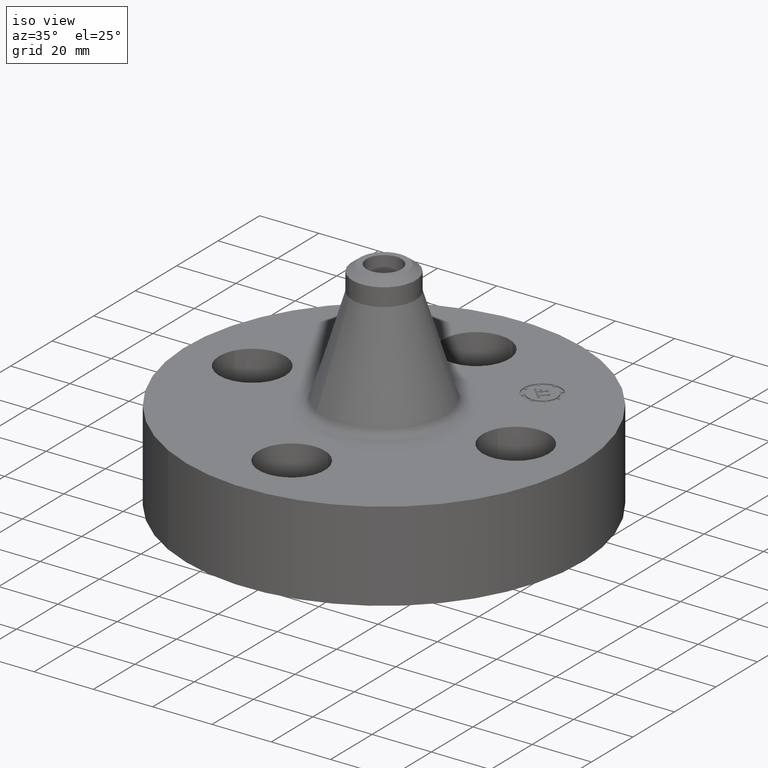
[diagram: clean part render]
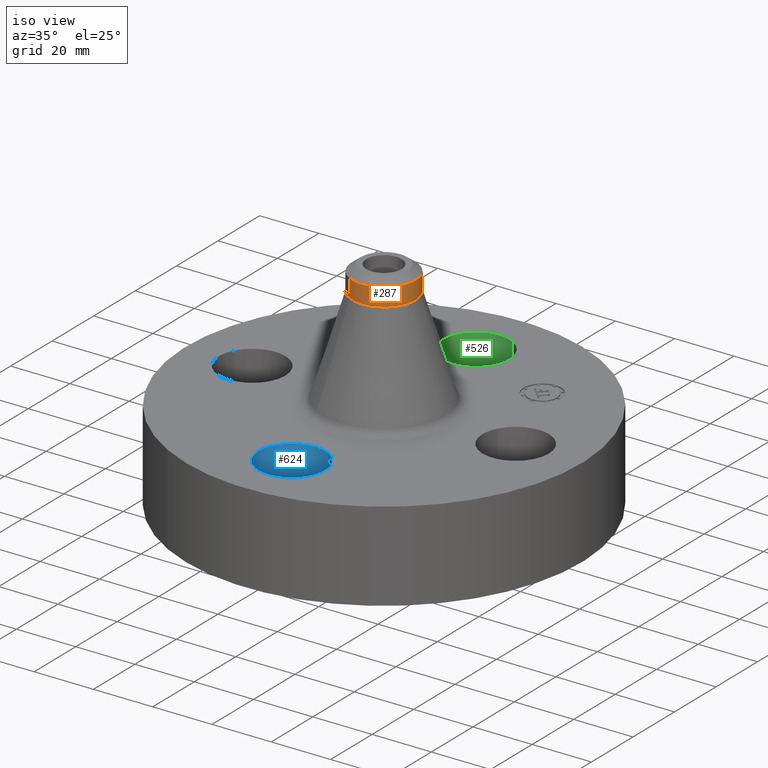
[diagram: same view with three faces highlighted in distinct colors, each labeled with its STEP entity id]
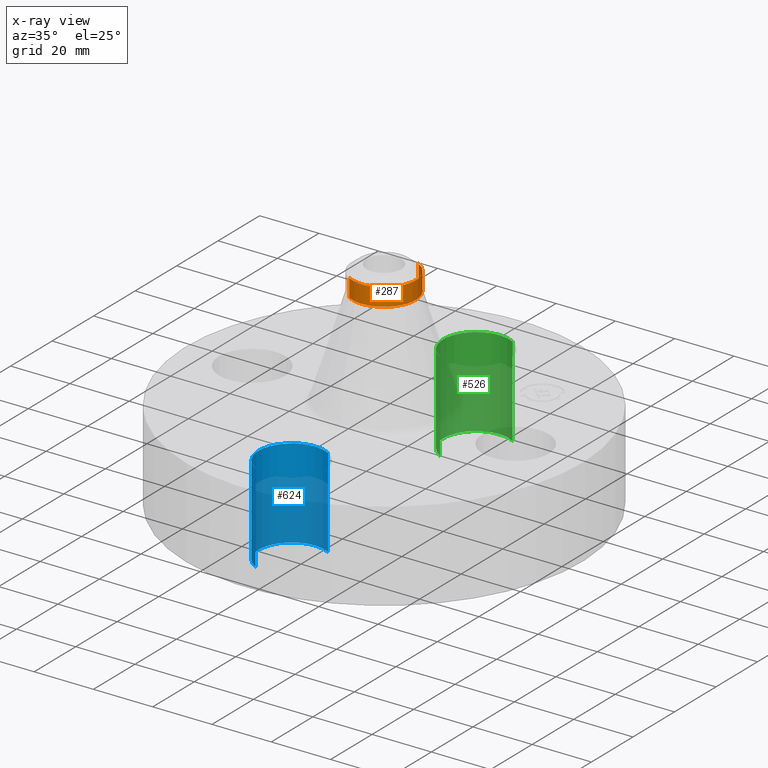
[diagram: x-ray of the same camera — body ghosted, the three highlighted faces saturated]
A machine part, iso view with three faces highlighted in distinct colors.
The next image is the same camera in x-ray (body ghosted, the three faces saturated) — at least one of them is partly hidden behind the body in this view.
Their STEP definitions:

[orange] entity #287 — the highlighted cylindrical surface (partial cylindrical patch) has radius 10.668 mm, axis along (0, 0, -1).
#220=AXIS2_PLACEMENT_3D('Circle Axis2P3D',#218,#219,$) ;
#252=AXIS2_PLACEMENT_3D('Cylinder Axis2P3D',#249,#250,#251) ;
#270=AXIS2_PLACEMENT_3D('Circle Axis2P3D',#268,#269,$) ;
#277=AXIS2_PLACEMENT_3D('Circle Axis2P3D',#275,#276,$) ;
#215=CARTESIAN_POINT('Vertex',(0.201358726215,0.368584675995,2.5599415017)) ;
#218=CARTESIAN_POINT('Axis2P3D Location',(0.,0.,2.5599415017)) ;
#222=CARTESIAN_POINT('Vertex',(-0.201358726215,-0.368584675995,2.5599415017)) ;
#249=CARTESIAN_POINT('Axis2P3D Location',(0.,0.,1.44000000001)) ;
#254=CARTESIAN_POINT('Line Origine',(-0.201358726215,-0.368584675995,2.67805173792)) ;
#258=CARTESIAN_POINT('Vertex',(-0.201358726215,-0.368584675995,2.79616197414)) ;
#261=CARTESIAN_POINT('Line Origine',(0.201358726215,0.368584675995,2.67805173792)) ;
#265=CARTESIAN_POINT('Vertex',(0.201358726215,0.368584675995,2.79616197414)) ;
#268=CARTESIAN_POINT('Axis2P3D Location',(0.,0.,2.79616197414)) ;
#272=CARTESIAN_POINT('Vertex',(0.201358726215,-0.368584675995,2.79616197414)) ;
#275=CARTESIAN_POINT('Axis2P3D Location',(0.,0.,2.79616197414)) ;
#219=DIRECTION('Axis2P3D Direction',(0.,0.,-0.0393700787402)) ;
#250=DIRECTION('Axis2P3D Direction',(0.,0.,-0.0393700787402)) ;
#251=DIRECTION('Axis2P3D XDirection',(-0.0188750212049,-0.0345504945626,0.)) ;
#255=DIRECTION('Vector Direction',(0.,0.,-0.0393700787402)) ;
#262=DIRECTION('Vector Direction',(0.,0.,-0.0393700787402)) ;
#269=DIRECTION('Axis2P3D Direction',(0.,0.,-0.0393700787402)) ;
#276=DIRECTION('Axis2P3D Direction',(0.,0.,-0.0393700787402)) ;
#256=VECTOR('Line Direction',#255,0.0393700787402) ;
#263=VECTOR('Line Direction',#262,0.0393700787402) ;
#281=ORIENTED_EDGE('',*,*,#260,.F.) ;
#282=ORIENTED_EDGE('',*,*,#224,.F.) ;
#283=ORIENTED_EDGE('',*,*,#267,.T.) ;
#284=ORIENTED_EDGE('',*,*,#274,.F.) ;
#285=ORIENTED_EDGE('',*,*,#279,.T.) ;
#287=ADVANCED_FACE('PartBody',(#286),#253,.T.) ;
#221=CIRCLE('generated circle',#220,0.420000000002) ;
#271=CIRCLE('generated circle',#270,0.420000000002) ;
#278=CIRCLE('generated circle',#277,0.420000000002) ;
#253=CYLINDRICAL_SURFACE('generated cylinder',#252,0.420000000002) ;
#224=EDGE_CURVE('',#216,#223,#221,.T.) ;
#260=EDGE_CURVE('',#223,#259,#257,.F.) ;
#267=EDGE_CURVE('',#216,#266,#264,.F.) ;
#274=EDGE_CURVE('',#273,#266,#271,.F.) ;
#279=EDGE_CURVE('',#273,#259,#278,.T.) ;
#280=EDGE_LOOP('',(#281,#282,#283,#284,#285)) ;
#286=FACE_OUTER_BOUND('',#280,.T.) ;
#257=LINE('Line',#254,#256) ;
#264=LINE('Line',#261,#263) ;
#216=VERTEX_POINT('',#215) ;
#223=VERTEX_POINT('',#222) ;
#259=VERTEX_POINT('',#258) ;
#266=VERTEX_POINT('',#265) ;
#273=VERTEX_POINT('',#272) ;

[blue] entity #624 — the highlighted cylindrical surface (partial cylindrical patch) has radius 11.176 mm, axis along (0, -0, -1).
#452=AXIS2_PLACEMENT_3D('Circle Axis2P3D',#450,#451,$) ;
#585=AXIS2_PLACEMENT_3D('Cylinder Axis2P3D',#582,#583,#584) ;
#615=AXIS2_PLACEMENT_3D('Circle Axis2P3D',#613,#614,$) ;
#445=CARTESIAN_POINT('Vertex',(0.210947236987,-1.36386367277,0.)) ;
#447=CARTESIAN_POINT('Vertex',(-0.210947236987,-2.13613632724,0.)) ;
#450=CARTESIAN_POINT('Axis2P3D Location',(3.49676543189E-017,-1.75000000001,0.)) ;
#582=CARTESIAN_POINT('Axis2P3D Location',(1.07156594926E-016,-1.75000000001,1.18606299213)) ;
#587=CARTESIAN_POINT('Line Origine',(0.210947236987,-1.36386367277,0.595000000002)) ;
#591=CARTESIAN_POINT('Vertex',(0.210947236987,-1.36386367277,1.19)) ;
#594=CARTESIAN_POINT('Line Origine',(-0.210947236987,-2.13613632724,0.595000000002)) ;
#598=CARTESIAN_POINT('Vertex',(-0.210947236987,-2.13613632724,1.19)) ;
#613=CARTESIAN_POINT('Axis2P3D Location',(1.07156594926E-016,-1.75000000001,1.19)) ;
#451=DIRECTION('Axis2P3D Direction',(0.,0.,-0.0393700787402)) ;
#583=DIRECTION('Axis2P3D Direction',(0.,-0.,-0.0393700787402)) ;
#584=DIRECTION('Axis2P3D XDirection',(-0.0188750212049,-0.0345504945626,0.)) ;
#588=DIRECTION('Vector Direction',(0.,0.,-0.0393700787402)) ;
#595=DIRECTION('Vector Direction',(0.,0.,-0.0393700787402)) ;
#614=DIRECTION('Axis2P3D Direction',(0.,-0.,-0.0393700787402)) ;
#589=VECTOR('Line Direction',#588,0.0393700787402) ;
#596=VECTOR('Line Direction',#595,0.0393700787402) ;
#619=ORIENTED_EDGE('',*,*,#600,.F.) ;
#620=ORIENTED_EDGE('',*,*,#454,.T.) ;
#621=ORIENTED_EDGE('',*,*,#593,.T.) ;
#622=ORIENTED_EDGE('',*,*,#617,.F.) ;
#624=ADVANCED_FACE('PartBody',(#623),#586,.F.) ;
#453=CIRCLE('generated circle',#452,0.440000000002) ;
#616=CIRCLE('generated circle',#615,0.440000000002) ;
#586=CYLINDRICAL_SURFACE('generated cylinder',#585,0.440000000002) ;
#454=EDGE_CURVE('',#448,#446,#453,.T.) ;
#593=EDGE_CURVE('',#446,#592,#590,.F.) ;
#600=EDGE_CURVE('',#448,#599,#597,.F.) ;
#617=EDGE_CURVE('',#599,#592,#616,.T.) ;
#618=EDGE_LOOP('',(#619,#620,#621,#622)) ;
#623=FACE_OUTER_BOUND('',#618,.T.) ;
#590=LINE('Line',#587,#589) ;
#597=LINE('Line',#594,#596) ;
#446=VERTEX_POINT('',#445) ;
#448=VERTEX_POINT('',#447) ;
#592=VERTEX_POINT('',#591) ;
#599=VERTEX_POINT('',#598) ;

[green] entity #526 — the highlighted cylindrical surface (partial cylindrical patch) has radius 11.176 mm, axis along (0, 0, -1).
#479=AXIS2_PLACEMENT_3D('Circle Axis2P3D',#477,#478,$) ;
#499=AXIS2_PLACEMENT_3D('Cylinder Axis2P3D',#496,#497,#498) ;
#517=AXIS2_PLACEMENT_3D('Circle Axis2P3D',#515,#516,$) ;
#477=CARTESIAN_POINT('Axis2P3D Location',(-3.1470888887E-016,1.75000000001,0.)) ;
#481=CARTESIAN_POINT('Vertex',(-0.210947236987,1.36386367277,0.)) ;
#483=CARTESIAN_POINT('Vertex',(0.210947236987,2.13613632724,0.)) ;
#496=CARTESIAN_POINT('Axis2P3D Location',(-3.21469784777E-016,1.75000000001,1.18606299213)) ;
#501=CARTESIAN_POINT('Line Origine',(-0.210947236987,1.36386367277,0.595000000002)) ;
#505=CARTESIAN_POINT('Vertex',(-0.210947236987,1.36386367277,1.19)) ;
#508=CARTESIAN_POINT('Line Origine',(0.210947236987,2.13613632724,0.595000000002)) ;
#512=CARTESIAN_POINT('Vertex',(0.210947236987,2.13613632724,1.19)) ;
#515=CARTESIAN_POINT('Axis2P3D Location',(-3.21469784777E-016,1.75000000001,1.19)) ;
#478=DIRECTION('Axis2P3D Direction',(0.,0.,-0.0393700787402)) ;
#497=DIRECTION('Axis2P3D Direction',(0.,0.,-0.0393700787402)) ;
#498=DIRECTION('Axis2P3D XDirection',(0.0188750212049,0.0345504945626,0.)) ;
#502=DIRECTION('Vector Direction',(0.,0.,-0.0393700787402)) ;
#509=DIRECTION('Vector Direction',(0.,0.,-0.0393700787402)) ;
#516=DIRECTION('Axis2P3D Direction',(0.,0.,-0.0393700787402)) ;
#503=VECTOR('Line Direction',#502,0.0393700787402) ;
#510=VECTOR('Line Direction',#509,0.0393700787402) ;
#521=ORIENTED_EDGE('',*,*,#507,.F.) ;
#522=ORIENTED_EDGE('',*,*,#485,.T.) ;
#523=ORIENTED_EDGE('',*,*,#514,.T.) ;
#524=ORIENTED_EDGE('',*,*,#519,.F.) ;
#526=ADVANCED_FACE('PartBody',(#525),#500,.F.) ;
#480=CIRCLE('generated circle',#479,0.440000000002) ;
#518=CIRCLE('generated circle',#517,0.440000000002) ;
#500=CYLINDRICAL_SURFACE('generated cylinder',#499,0.440000000002) ;
#485=EDGE_CURVE('',#482,#484,#480,.T.) ;
#507=EDGE_CURVE('',#482,#506,#504,.F.) ;
#514=EDGE_CURVE('',#484,#513,#511,.F.) ;
#519=EDGE_CURVE('',#506,#513,#518,.T.) ;
#520=EDGE_LOOP('',(#521,#522,#523,#524)) ;
#525=FACE_OUTER_BOUND('',#520,.T.) ;
#504=LINE('Line',#501,#503) ;
#511=LINE('Line',#508,#510) ;
#482=VERTEX_POINT('',#481) ;
#484=VERTEX_POINT('',#483) ;
#506=VERTEX_POINT('',#505) ;
#513=VERTEX_POINT('',#512) ;